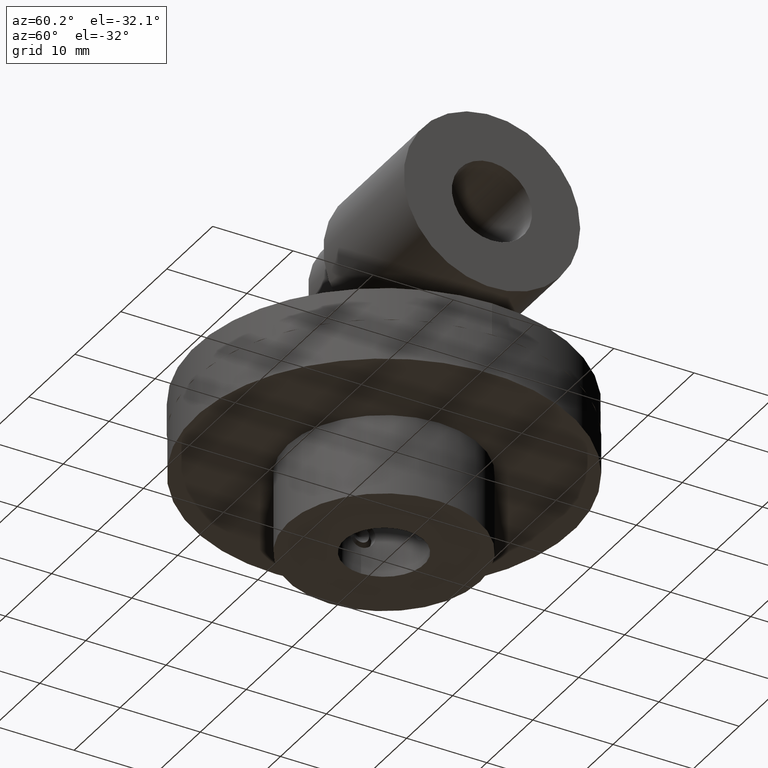
[diagram: clean part render]
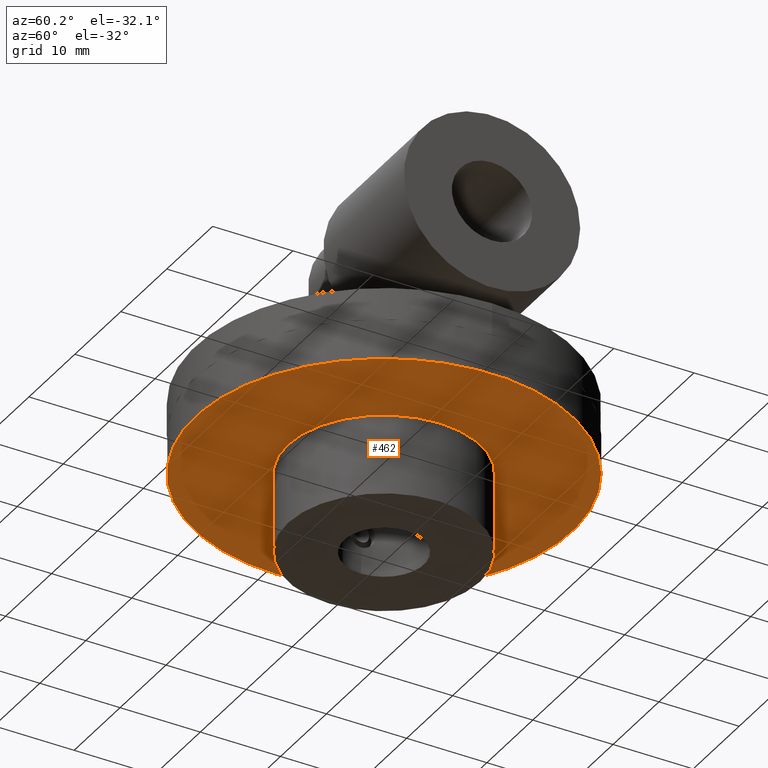
[diagram: same view with one face highlighted and labeled with its STEP entity id]
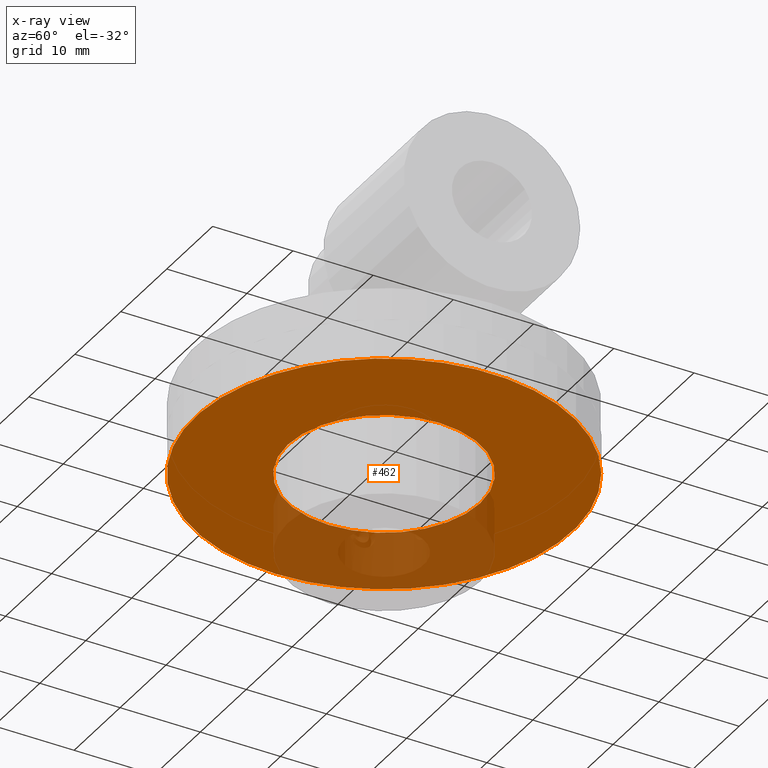
[diagram: x-ray of the same camera — body ghosted, the highlighted face saturated]
A machine part, auxiliary view. The second image highlights one B-rep face of the part: STEP entity #462.
The next image is the same camera in x-ray: the body ghosted, the highlighted face saturated — about 24% of this face is hidden behind the body in this view.
In plain terms, the highlighted planar face has unit normal (0, 0, 1).
Its self-contained STEP definition (entity closure, byte-faithful):
#462 = ADVANCED_FACE( '', ( #565, #566 ), #567, .F. );
#565 = FACE_OUTER_BOUND( '', #749, .T. );
#566 = FACE_BOUND( '', #750, .T. );
#567 = PLANE( '', #751 );
#749 = EDGE_LOOP( '', ( #951 ) );
#750 = EDGE_LOOP( '', ( #952 ) );
#751 = AXIS2_PLACEMENT_3D( '', #953, #954, #955 );
#951 = ORIENTED_EDGE( '', *, *, #1338, .F. );
#952 = ORIENTED_EDGE( '', *, *, #1346, .T. );
#953 = CARTESIAN_POINT( '', ( 0.000000000000000, 0.000000000000000, 18.0000000000000 ) );
#954 = DIRECTION( '', ( 0.000000000000000, 0.000000000000000, 1.00000000000000 ) );
#955 = DIRECTION( '', ( -1.00000000000000, 1.22460635382238E-016, 0.000000000000000 ) );
#1338 = EDGE_CURVE( '', #1458, #1458, #1459, .T. );
#1346 = EDGE_CURVE( '', #1474, #1474, #1475, .T. );
#1458 = VERTEX_POINT( '', #1658 );
#1459 = CIRCLE( '', #1659, 23.5000000000000 );
#1474 = VERTEX_POINT( '', #1890 );
#1475 = CIRCLE( '', #1891, 12.0000000000000 );
#1658 = CARTESIAN_POINT( '', ( -23.5000000000000, 2.87782493148259E-015, 18.0000000000000 ) );
#1659 = AXIS2_PLACEMENT_3D( '', #2458, #2459, #2460 );
#1890 = CARTESIAN_POINT( '', ( -12.0000000000000, 1.46952762458685E-015, 18.0000000000000 ) );
#1891 = AXIS2_PLACEMENT_3D( '', #2470, #2471, #2472 );
#2458 = CARTESIAN_POINT( '', ( 0.000000000000000, 0.000000000000000, 18.0000000000000 ) );
#2459 = DIRECTION( '', ( 0.000000000000000, 0.000000000000000, 1.00000000000000 ) );
#2460 = DIRECTION( '', ( -1.00000000000000, 1.22460635382238E-016, 0.000000000000000 ) );
#2470 = CARTESIAN_POINT( '', ( 0.000000000000000, 0.000000000000000, 18.0000000000000 ) );
#2471 = DIRECTION( '', ( 0.000000000000000, 0.000000000000000, 1.00000000000000 ) );
#2472 = DIRECTION( '', ( -1.00000000000000, 1.22460635382238E-016, 0.000000000000000 ) );